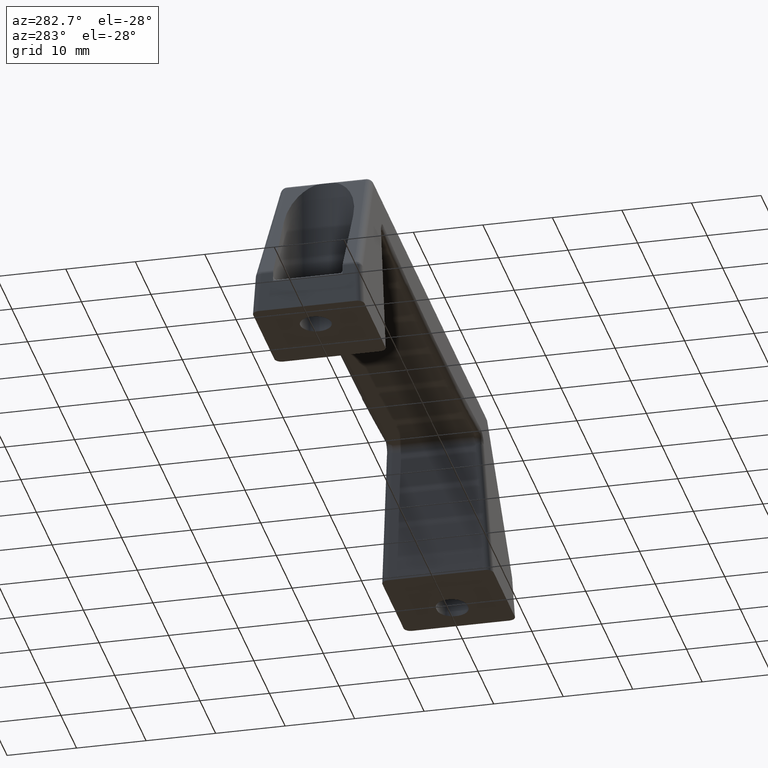
[diagram: clean part render]
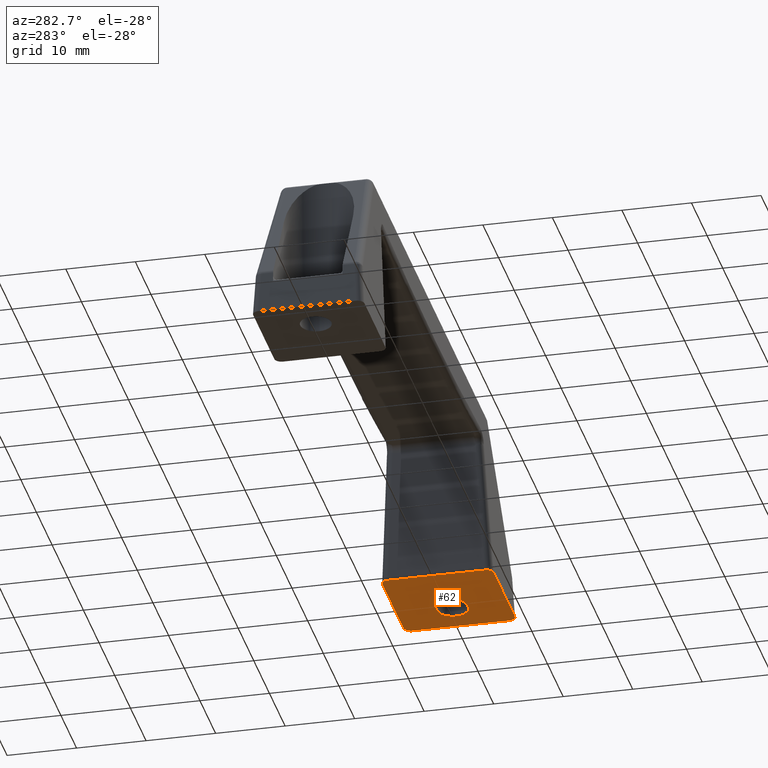
[diagram: same view with one face highlighted and labeled with its STEP entity id]
A machine part, auxiliary view. The second image highlights one B-rep face of the part: STEP entity #62.
In plain terms, the highlighted planar face has unit normal (-0, 0, -1).
Its self-contained STEP definition (entity closure, byte-faithful):
#62=ADVANCED_FACE('',(#342,#343),#341,.T.);
#341=PLANE('',#1198);
#342=FACE_OUTER_BOUND('',#1199,.T.);
#343=FACE_BOUND('',#1200,.T.);
#1195=CARTESIAN_POINT('',(5.05500000000E+01,-9.60000000008E+00,-2.60000000000E+01));
#1196=DIRECTION('',(-8.83925549244E-13,0.00000000000E+00,-1.00000000000E+00));
#1197=DIRECTION('',(-1.00000000000E+00,0.00000000000E+00,8.83925549244E-13));
#1198=AXIS2_PLACEMENT_3D('',#1195,#1196,#1197);
#1199=EDGE_LOOP('',(#1779,#1780,#1781,#1782,#1783,#1784,#1785,#1786));
#1200=EDGE_LOOP('',(#1787,#1788,#1789,#1790));
#1779=ORIENTED_EDGE('',*,*,#2137,.F.);
#1780=ORIENTED_EDGE('',*,*,#2097,.T.);
#1781=ORIENTED_EDGE('',*,*,#2138,.T.);
#1782=ORIENTED_EDGE('',*,*,#2139,.F.);
#1783=ORIENTED_EDGE('',*,*,#2140,.T.);
#1784=ORIENTED_EDGE('',*,*,#2141,.F.);
#1785=ORIENTED_EDGE('',*,*,#2142,.F.);
#1786=ORIENTED_EDGE('',*,*,#2143,.T.);
#1787=ORIENTED_EDGE('',*,*,#2144,.F.);
#1788=ORIENTED_EDGE('',*,*,#2145,.T.);
#1789=ORIENTED_EDGE('',*,*,#2146,.F.);
#1790=ORIENTED_EDGE('',*,*,#2147,.F.);
#2097=EDGE_CURVE('',#2554,#2547,#2555,.T.);
#2137=EDGE_CURVE('',#2554,#2819,#2820,.T.);
#2138=EDGE_CURVE('',#2547,#2826,#2827,.T.);
#2139=EDGE_CURVE('',#2833,#2826,#2834,.T.);
#2140=EDGE_CURVE('',#2833,#2840,#2841,.T.);
#2141=EDGE_CURVE('',#2847,#2840,#2848,.T.);
#2142=EDGE_CURVE('',#2854,#2847,#2855,.T.);
#2143=EDGE_CURVE('',#2854,#2819,#2861,.T.);
#2144=EDGE_CURVE('',#2867,#2868,#2869,.T.);
#2145=EDGE_CURVE('',#2867,#2875,#2876,.T.);
#2146=EDGE_CURVE('',#2882,#2875,#2883,.T.);
#2147=EDGE_CURVE('',#2868,#2882,#2889,.T.);
#2547=VERTEX_POINT('',#3688);
#2554=VERTEX_POINT('',#3692);
#2555=LINE('',#3693,#3694);
#2819=VERTEX_POINT('',#3866);
#2820=(BOUNDED_CURVE() B_SPLINE_CURVE(2,(#3867,#3868,#3869),.UNSPECIFIED.,.F.,.F.) B_SPLINE_CURVE_WITH_KNOTS((3,3),(5.62968364085E+00,7.19691951292E+00),.UNSPECIFIED.) CURVE() GEOMETRIC_REPRESENTATION_ITEM() RATIONAL_B_SPLINE_CURVE((1.00000000000E+00,7.08364470877E-01,1.00000000000E+00)) REPRESENTATION_ITEM('') );
#2826=VERTEX_POINT('',#3870);
#2827=(BOUNDED_CURVE() B_SPLINE_CURVE(2,(#3871,#3872,#3873),.UNSPECIFIED.,.F.,.F.) B_SPLINE_CURVE_WITH_KNOTS((3,3),(5.62968364085E+00,7.19691951292E+00),.UNSPECIFIED.) CURVE() GEOMETRIC_REPRESENTATION_ITEM() RATIONAL_B_SPLINE_CURVE((1.00000000000E+00,7.08364470877E-01,1.00000000000E+00)) REPRESENTATION_ITEM('') );
#2833=VERTEX_POINT('',#3874);
#2834=LINE('',#3875,#3876);
#2840=VERTEX_POINT('',#3878);
#2841=(BOUNDED_CURVE() B_SPLINE_CURVE(2,(#3879,#3880,#3881,#3882,#3883),.UNSPECIFIED.,.F.,.F.) B_SPLINE_CURVE_WITH_KNOTS((3,2,3),(4.12285969791E+00,4.91075200234E+00,5.69776226805E+00),.UNSPECIFIED.) CURVE() GEOMETRIC_REPRESENTATION_ITEM() RATIONAL_B_SPLINE_CURVE((1.00000000000E+00,9.23486197952E-01,1.00000000000E+00,9.23486197952E-01,1.00000000000E+00)) REPRESENTATION_ITEM('') );
#2847=VERTEX_POINT('',#3884);
#2848=LINE('',#3885,#3886);
#2854=VERTEX_POINT('',#3888);
#2855=(BOUNDED_CURVE() B_SPLINE_CURVE(2,(#3889,#3890,#3891,#3892,#3893),.UNSPECIFIED.,.F.,.F.) B_SPLINE_CURVE_WITH_KNOTS((3,2,3),(4.12285969791E+00,4.91075200234E+00,5.69776226805E+00),.UNSPECIFIED.) CURVE() GEOMETRIC_REPRESENTATION_ITEM() RATIONAL_B_SPLINE_CURVE((1.00000000000E+00,9.23486197952E-01,1.00000000000E+00,9.23486197952E-01,1.00000000000E+00)) REPRESENTATION_ITEM('') );
#2861=LINE('',#3894,#3895);
#2867=VERTEX_POINT('',#3897);
#2868=VERTEX_POINT('',#3898);
#2869=CIRCLE('',#3902,2.25000000000E+00);
#2875=VERTEX_POINT('',#3903);
#2876=LINE('',#3904,#3905);
#2882=VERTEX_POINT('',#3907);
#2883=CIRCLE('',#3911,2.25000000000E+00);
#2889=LINE('',#3912,#3913);
#3688=CARTESIAN_POINT('',(4.90000000000E+01,-7.00219298737E+00,-2.60000000000E+01));
#3692=CARTESIAN_POINT('',(4.90000000000E+01,7.00219298737E+00,-2.60000000000E+01));
#3693=CARTESIAN_POINT('',(4.90000000000E+01,7.00219298737E+00,-2.60000000000E+01));
#3694=VECTOR('',#3695,1.40043859747E+01);
#3695=DIRECTION('',(0.00000000000E+00,-1.00000000000E+00,0.00000000000E+00));
#3866=CARTESIAN_POINT('',(4.80012465693E+01,8.00000000007E+00,-2.60000000000E+01));
#3867=CARTESIAN_POINT('',(4.90000000000E+01,7.00219298737E+00,-2.60000000000E+01));
#3868=CARTESIAN_POINT('',(4.90000000000E+01,8.00000000000E+00,-2.60000000000E+01));
#3869=CARTESIAN_POINT('',(4.80012465693E+01,8.00000000000E+00,-2.60000000000E+01));
#3870=CARTESIAN_POINT('',(4.80012465693E+01,-8.00000000007E+00,-2.60000000000E+01));
#3871=CARTESIAN_POINT('',(4.90000000000E+01,-7.00219298737E+00,-2.60000000000E+01));
#3872=CARTESIAN_POINT('',(4.90000000000E+01,-8.00000000000E+00,-2.60000000000E+01));
#3873=CARTESIAN_POINT('',(4.80012465693E+01,-8.00000000000E+00,-2.60000000000E+01));
#3874=CARTESIAN_POINT('',(3.45072111276E+01,-8.00000000007E+00,-2.60000000000E+01));
#3875=CARTESIAN_POINT('',(3.45072111276E+01,-8.00000000007E+00,-2.60000000000E+01));
#3876=VECTOR('',#3877,1.34940354417E+01);
#3877=DIRECTION('',(1.00000000000E+00,0.00000000000E+00,-8.84095242296E-13));
#3878=CARTESIAN_POINT('',(3.35000000000E+01,-6.99451578703E+00,-2.60000000000E+01));
#3879=CARTESIAN_POINT('',(3.45072111276E+01,-8.00000000000E+00,-2.60000000000E+01));
#3880=CARTESIAN_POINT('',(3.40905133243E+01,-8.00000000000E+00,-2.60000000000E+01));
#3881=CARTESIAN_POINT('',(3.37952566621E+01,-7.70524957039E+00,-2.60000000000E+01));
#3882=CARTESIAN_POINT('',(3.35000000000E+01,-7.41049914079E+00,-2.60000000000E+01));
#3883=CARTESIAN_POINT('',(3.35000000000E+01,-6.99451578703E+00,-2.60000000000E+01));
#3884=CARTESIAN_POINT('',(3.35000000000E+01,6.99451578703E+00,-2.60000000000E+01));
#3885=CARTESIAN_POINT('',(3.35000000000E+01,6.99451578703E+00,-2.60000000000E+01));
#3886=VECTOR('',#3887,1.39890315741E+01);
#3887=DIRECTION('',(0.00000000000E+00,-1.00000000000E+00,0.00000000000E+00));
#3888=CARTESIAN_POINT('',(3.45072111276E+01,8.00000000007E+00,-2.60000000000E+01));
#3889=CARTESIAN_POINT('',(3.45072111276E+01,8.00000000000E+00,-2.60000000000E+01));
#3890=CARTESIAN_POINT('',(3.40905133243E+01,8.00000000000E+00,-2.60000000000E+01));
#3891=CARTESIAN_POINT('',(3.37952566621E+01,7.70524957039E+00,-2.60000000000E+01));
#3892=CARTESIAN_POINT('',(3.35000000000E+01,7.41049914079E+00,-2.60000000000E+01));
#3893=CARTESIAN_POINT('',(3.35000000000E+01,6.99451578703E+00,-2.60000000000E+01));
#3894=CARTESIAN_POINT('',(3.45072111276E+01,8.00000000007E+00,-2.60000000000E+01));
#3895=VECTOR('',#3896,1.34940354417E+01);
#3896=DIRECTION('',(1.00000000000E+00,0.00000000000E+00,-8.84095242296E-13));
#3897=CARTESIAN_POINT('',(4.38000000000E+01,2.25000000000E+00,-2.60000000000E+01));
#3898=CARTESIAN_POINT('',(4.38000000000E+01,-2.25000000000E+00,-2.60000000000E+01));
#3899=CARTESIAN_POINT('',(4.38000000000E+01,0.00000000000E+00,-2.60000000000E+01));
#3900=DIRECTION('',(-8.83925549244E-13,0.00000000000E+00,-1.00000000000E+00));
#3901=DIRECTION('',(-1.83690953073E-16,1.00000000000E+00,1.62369126587E-28));
#3902=AXIS2_PLACEMENT_3D('',#3899,#3900,#3901);
#3903=CARTESIAN_POINT('',(4.32000000000E+01,2.25000000000E+00,-2.60000000000E+01));
#3904=CARTESIAN_POINT('',(4.38000000000E+01,2.25000000000E+00,-2.60000000000E+01));
#3905=VECTOR('',#3906,6.00000000000E-01);
#3906=DIRECTION('',(-1.00000000000E+00,0.00000000000E+00,8.88178419700E-13));
#3907=CARTESIAN_POINT('',(4.32000000000E+01,-2.25000000000E+00,-2.60000000000E+01));
#3908=CARTESIAN_POINT('',(4.32000000000E+01,0.00000000000E+00,-2.60000000000E+01));
#3909=DIRECTION('',(-8.83925549244E-13,0.00000000000E+00,-1.00000000000E+00));
#3910=DIRECTION('',(1.00000000000E+00,-0.00000000000E+00,-8.83925549244E-13));
#3911=AXIS2_PLACEMENT_3D('',#3908,#3909,#3910);
#3912=CARTESIAN_POINT('',(4.38000000000E+01,-2.25000000000E+00,-2.60000000000E+01));
#3913=VECTOR('',#3914,6.00000000000E-01);
#3914=DIRECTION('',(-1.00000000000E+00,0.00000000000E+00,8.88178419700E-13));